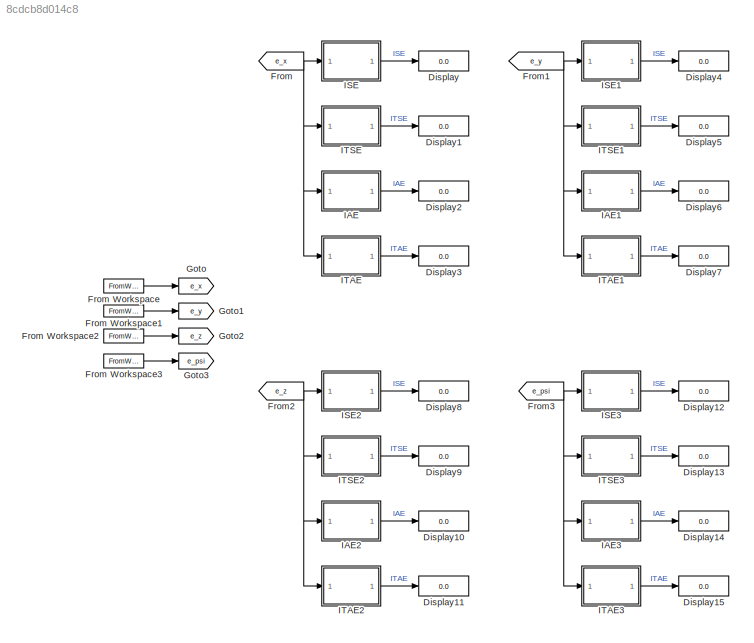
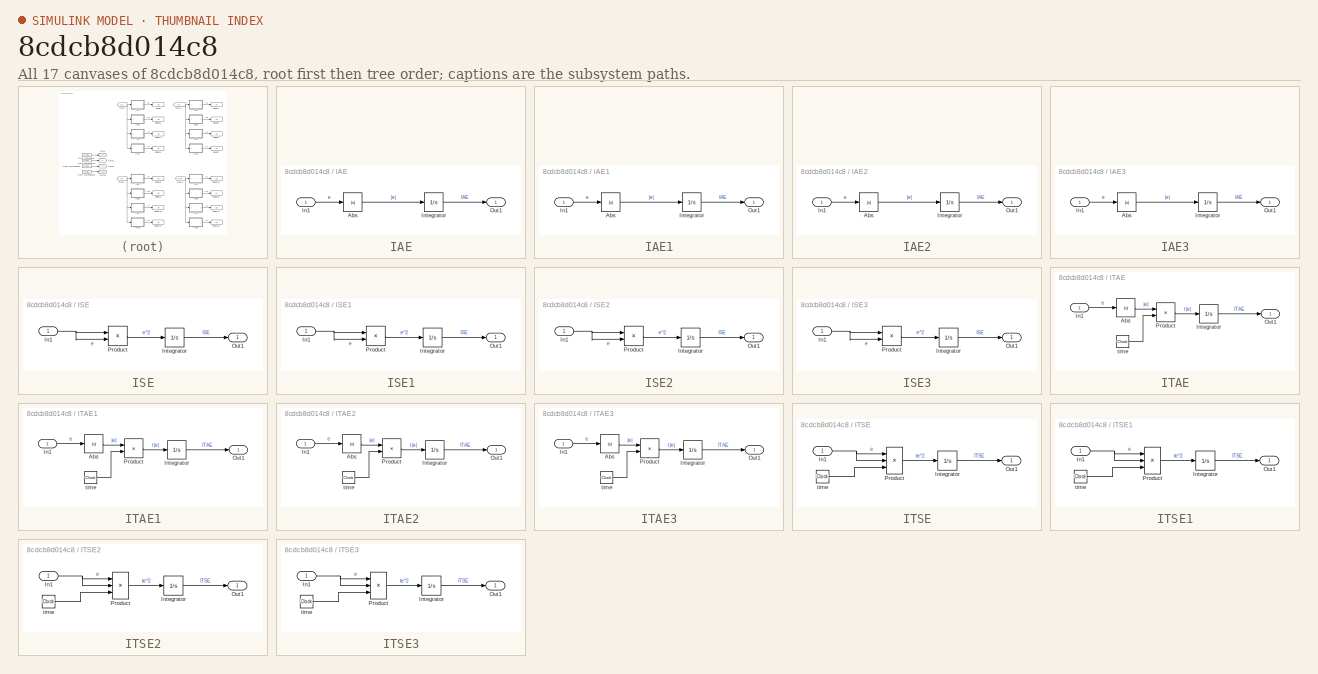
[diagram: thumbnail index - all 17 canvases of the model, root first then tree order]
MODEL slx_8cdcb8d014c8
KIND model
CONFIG AbsTol = auto
CONFIG EnableMultiTasking = off
CONFIG FixedStep = 0.01
CONFIG MaxStep = auto
CONFIG MinStep = auto
CONFIG RelTol = 1e-3
CONFIG SampleTimeConstraint = Unconstrained
CONFIG SolverName = FixedStepAuto
CONFIG StartTime = 0.0
CONFIG StopTime = 50
BLOCK [Display] Display
  Decimation = 1
BLOCK [Display] Display1
  Decimation = 1
BLOCK [Display] Display10
  Decimation = 1
BLOCK [Display] Display11
  Decimation = 1
BLOCK [Display] Display12
  Decimation = 1
BLOCK [Display] Display13
  Decimation = 1
BLOCK [Display] Display14
  Decimation = 1
BLOCK [Display] Display15
  Decimation = 1
BLOCK [Display] Display2
  Decimation = 1
BLOCK [Display] Display3
  Decimation = 1
BLOCK [Display] Display4
  Decimation = 1
BLOCK [Display] Display5
  Decimation = 1
BLOCK [Display] Display6
  Decimation = 1
BLOCK [Display] Display7
  Decimation = 1
BLOCK [Display] Display8
  Decimation = 1
BLOCK [Display] Display9
  Decimation = 1
BLOCK [From] From
  GotoTag = e_x
BLOCK [FromWorkspace] From Workspace
  SampleTime = -1
  VariableName = e_x
BLOCK [FromWorkspace] From Workspace1
  SampleTime = -1
  VariableName = e_y
BLOCK [FromWorkspace] From Workspace2
  SampleTime = -1
  VariableName = e_z
BLOCK [FromWorkspace] From Workspace3
  SampleTime = -1
  VariableName = e_psi
BLOCK [From] From1
  GotoTag = e_y
BLOCK [From] From2
  GotoTag = e_z
BLOCK [From] From3
  GotoTag = e_psi
BLOCK [Goto] Goto
  GotoTag = e_x
BLOCK [Goto] Goto1
  GotoTag = e_y
BLOCK [Goto] Goto2
  GotoTag = e_z
BLOCK [Goto] Goto3
  GotoTag = e_psi
BLOCK [SubSystem] IAE
BLOCK [Abs] IAE/Abs
  SaturateOnIntegerOverflow = off
BLOCK [Inport] IAE/In1
BLOCK [Integrator] IAE/Integrator
BLOCK [Outport] IAE/Out1
BLOCK [SubSystem] IAE1
BLOCK [Abs] IAE1/Abs
  SaturateOnIntegerOverflow = off
BLOCK [Inport] IAE1/In1
BLOCK [Integrator] IAE1/Integrator
BLOCK [Outport] IAE1/Out1
BLOCK [SubSystem] IAE2
BLOCK [Abs] IAE2/Abs
  SaturateOnIntegerOverflow = off
BLOCK [Inport] IAE2/In1
BLOCK [Integrator] IAE2/Integrator
BLOCK [Outport] IAE2/Out1
BLOCK [SubSystem] IAE3
BLOCK [Abs] IAE3/Abs
  SaturateOnIntegerOverflow = off
BLOCK [Inport] IAE3/In1
BLOCK [Integrator] IAE3/Integrator
BLOCK [Outport] IAE3/Out1
BLOCK [SubSystem] ISE
BLOCK [Inport] ISE/In1
BLOCK [Integrator] ISE/Integrator
BLOCK [Outport] ISE/Out1
BLOCK [Product] ISE/Product
BLOCK [SubSystem] ISE1
BLOCK [Inport] ISE1/In1
BLOCK [Integrator] ISE1/Integrator
BLOCK [Outport] ISE1/Out1
BLOCK [Product] ISE1/Product
BLOCK [SubSystem] ISE2
BLOCK [Inport] ISE2/In1
BLOCK [Integrator] ISE2/Integrator
BLOCK [Outport] ISE2/Out1
BLOCK [Product] ISE2/Product
BLOCK [SubSystem] ISE3
BLOCK [Inport] ISE3/In1
BLOCK [Integrator] ISE3/Integrator
BLOCK [Outport] ISE3/Out1
BLOCK [Product] ISE3/Product
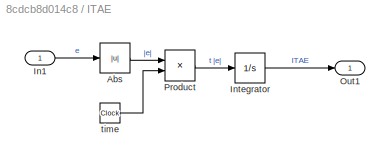
BLOCK [SubSystem] ITAE
BLOCK [Abs] ITAE/Abs
  SaturateOnIntegerOverflow = off
BLOCK [Inport] ITAE/In1
BLOCK [Integrator] ITAE/Integrator
BLOCK [Outport] ITAE/Out1
BLOCK [Product] ITAE/Product
BLOCK [Clock] ITAE/time
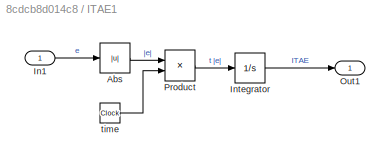
BLOCK [SubSystem] ITAE1
BLOCK [Abs] ITAE1/Abs
  SaturateOnIntegerOverflow = off
BLOCK [Inport] ITAE1/In1
BLOCK [Integrator] ITAE1/Integrator
BLOCK [Outport] ITAE1/Out1
BLOCK [Product] ITAE1/Product
BLOCK [Clock] ITAE1/time
BLOCK [SubSystem] ITAE2
BLOCK [Abs] ITAE2/Abs
  SaturateOnIntegerOverflow = off
BLOCK [Inport] ITAE2/In1
BLOCK [Integrator] ITAE2/Integrator
BLOCK [Outport] ITAE2/Out1
BLOCK [Product] ITAE2/Product
BLOCK [Clock] ITAE2/time
BLOCK [SubSystem] ITAE3
BLOCK [Abs] ITAE3/Abs
  SaturateOnIntegerOverflow = off
BLOCK [Inport] ITAE3/In1
BLOCK [Integrator] ITAE3/Integrator
BLOCK [Outport] ITAE3/Out1
BLOCK [Product] ITAE3/Product
BLOCK [Clock] ITAE3/time
BLOCK [SubSystem] ITSE
BLOCK [Inport] ITSE/In1
BLOCK [Integrator] ITSE/Integrator
BLOCK [Outport] ITSE/Out1
BLOCK [Product] ITSE/Product
  Inputs = 3
BLOCK [Clock] ITSE/time
BLOCK [SubSystem] ITSE1
BLOCK [Inport] ITSE1/In1
BLOCK [Integrator] ITSE1/Integrator
BLOCK [Outport] ITSE1/Out1
BLOCK [Product] ITSE1/Product
  Inputs = 3
BLOCK [Clock] ITSE1/time
BLOCK [SubSystem] ITSE2
BLOCK [Inport] ITSE2/In1
BLOCK [Integrator] ITSE2/Integrator
BLOCK [Outport] ITSE2/Out1
BLOCK [Product] ITSE2/Product
  Inputs = 3
BLOCK [Clock] ITSE2/time
BLOCK [SubSystem] ITSE3
BLOCK [Inport] ITSE3/In1
BLOCK [Integrator] ITSE3/Integrator
BLOCK [Outport] ITSE3/Out1
BLOCK [Product] ITSE3/Product
  Inputs = 3
BLOCK [Clock] ITSE3/time
LINE From Workspace1:1 -> Goto1:1
LINE From Workspace2:1 -> Goto2:1
LINE From Workspace3:1 -> Goto3:1
LINE From Workspace:1 -> Goto:1
NET From1:1 -> IAE1:1, ISE1:1, ITAE1:1, ITSE1:1
NET From2:1 -> IAE2:1, ISE2:1, ITAE2:1, ITSE2:1
NET From3:1 -> IAE3:1, ISE3:1, ITAE3:1, ITSE3:1
NET From:1 -> IAE:1, ISE:1, ITAE:1, ITSE:1
LINE IAE/Abs:1 -> IAE/Integrator:1
LINE IAE/In1:1 -> IAE/Abs:1
LINE IAE/Integrator:1 -> IAE/Out1:1
LINE IAE1/Abs:1 -> IAE1/Integrator:1
LINE IAE1/In1:1 -> IAE1/Abs:1
LINE IAE1/Integrator:1 -> IAE1/Out1:1
LINE IAE1:1 -> Display6:1
LINE IAE2/Abs:1 -> IAE2/Integrator:1
LINE IAE2/In1:1 -> IAE2/Abs:1
LINE IAE2/Integrator:1 -> IAE2/Out1:1
LINE IAE2:1 -> Display10:1
LINE IAE3/Abs:1 -> IAE3/Integrator:1
LINE IAE3/In1:1 -> IAE3/Abs:1
LINE IAE3/Integrator:1 -> IAE3/Out1:1
LINE IAE3:1 -> Display14:1
LINE IAE:1 -> Display2:1
NET ISE/In1:1 -> ISE/Product:1, ISE/Product:2
LINE ISE/Integrator:1 -> ISE/Out1:1
LINE ISE/Product:1 -> ISE/Integrator:1
NET ISE1/In1:1 -> ISE1/Product:1, ISE1/Product:2
LINE ISE1/Integrator:1 -> ISE1/Out1:1
LINE ISE1/Product:1 -> ISE1/Integrator:1
LINE ISE1:1 -> Display4:1
NET ISE2/In1:1 -> ISE2/Product:1, ISE2/Product:2
LINE ISE2/Integrator:1 -> ISE2/Out1:1
LINE ISE2/Product:1 -> ISE2/Integrator:1
LINE ISE2:1 -> Display8:1
NET ISE3/In1:1 -> ISE3/Product:1, ISE3/Product:2
LINE ISE3/Integrator:1 -> ISE3/Out1:1
LINE ISE3/Product:1 -> ISE3/Integrator:1
LINE ISE3:1 -> Display12:1
LINE ISE:1 -> Display:1
LINE ITAE/Abs:1 -> ITAE/Product:1
LINE ITAE/In1:1 -> ITAE/Abs:1
LINE ITAE/Integrator:1 -> ITAE/Out1:1
LINE ITAE/Product:1 -> ITAE/Integrator:1
LINE ITAE/time:1 -> ITAE/Product:2
LINE ITAE1/Abs:1 -> ITAE1/Product:1
LINE ITAE1/In1:1 -> ITAE1/Abs:1
LINE ITAE1/Integrator:1 -> ITAE1/Out1:1
LINE ITAE1/Product:1 -> ITAE1/Integrator:1
LINE ITAE1/time:1 -> ITAE1/Product:2
LINE ITAE1:1 -> Display7:1
LINE ITAE2/Abs:1 -> ITAE2/Product:1
LINE ITAE2/In1:1 -> ITAE2/Abs:1
LINE ITAE2/Integrator:1 -> ITAE2/Out1:1
LINE ITAE2/Product:1 -> ITAE2/Integrator:1
LINE ITAE2/time:1 -> ITAE2/Product:2
LINE ITAE2:1 -> Display11:1
LINE ITAE3/Abs:1 -> ITAE3/Product:1
LINE ITAE3/In1:1 -> ITAE3/Abs:1
LINE ITAE3/Integrator:1 -> ITAE3/Out1:1
LINE ITAE3/Product:1 -> ITAE3/Integrator:1
LINE ITAE3/time:1 -> ITAE3/Product:2
LINE ITAE3:1 -> Display15:1
LINE ITAE:1 -> Display3:1
NET ITSE/In1:1 -> ITSE/Product:1, ITSE/Product:2
LINE ITSE/Integrator:1 -> ITSE/Out1:1
LINE ITSE/Product:1 -> ITSE/Integrator:1
LINE ITSE/time:1 -> ITSE/Product:3
NET ITSE1/In1:1 -> ITSE1/Product:1, ITSE1/Product:2
LINE ITSE1/Integrator:1 -> ITSE1/Out1:1
LINE ITSE1/Product:1 -> ITSE1/Integrator:1
LINE ITSE1/time:1 -> ITSE1/Product:3
LINE ITSE1:1 -> Display5:1
NET ITSE2/In1:1 -> ITSE2/Product:1, ITSE2/Product:2
LINE ITSE2/Integrator:1 -> ITSE2/Out1:1
LINE ITSE2/Product:1 -> ITSE2/Integrator:1
LINE ITSE2/time:1 -> ITSE2/Product:3
LINE ITSE2:1 -> Display9:1
NET ITSE3/In1:1 -> ITSE3/Product:1, ITSE3/Product:2
LINE ITSE3/Integrator:1 -> ITSE3/Out1:1
LINE ITSE3/Product:1 -> ITSE3/Integrator:1
LINE ITSE3/time:1 -> ITSE3/Product:3
LINE ITSE3:1 -> Display13:1
LINE ITSE:1 -> Display1:1
note: NET lines group one-source signal fan-out (src -> all destinations, sorted); 1:1 wires keep LINE
